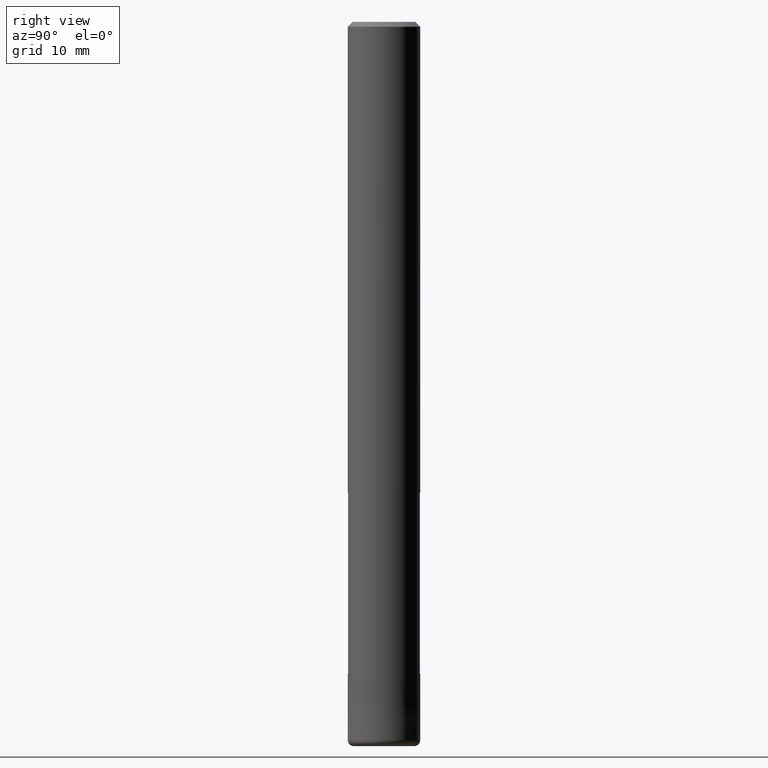
[diagram: clean part render]
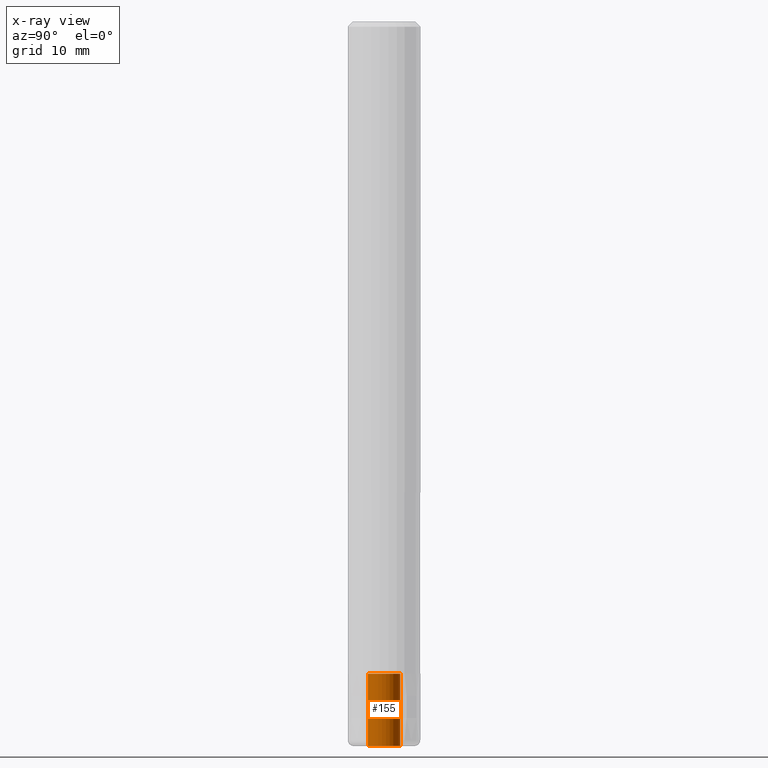
[diagram: x-ray — body ghosted, one internal face saturated and labeled with its STEP entity id]
A machine part, right view, then the same camera in x-ray: the body is ghosted and one INTERNAL B-rep face — a face not visible from any outside direction — is saturated and labeled: STEP entity #155.
In plain terms, the highlighted cylindrical surface (edge-blend (fillet) strip) has radius 1.35 mm, axis along (-0, -0, 1).
Its self-contained STEP definition (entity closure, byte-faithful):
#129=VERTEX_POINT('',#319);
#137=VERTEX_POINT('',#327);
#155=ADVANCED_FACE('',(#348),#349,.F.);
#161=VERTEX_POINT('',#355);
#183=EDGE_CURVE('',#129,#161,#384,.T.);
#187=VERTEX_POINT('',#388);
#207=EDGE_CURVE('',#187,#137,#409,.T.);
#251=EDGE_CURVE('',#137,#161,#458,.T.);
#269=EDGE_CURVE('',#129,#187,#477,.T.);
#319=CARTESIAN_POINT('',(0.0,1.35,-54.0));
#327=CARTESIAN_POINT('',(1.65321857766021E-016,-1.35,-60.0));
#348=FACE_OUTER_BOUND('',#560,.T.);
#349=CYLINDRICAL_SURFACE('',#561,1.35);
#355=CARTESIAN_POINT('',(1.65321857766021E-016,-1.35,-54.0));
#384=CIRCLE('',#604,1.35);
#388=CARTESIAN_POINT('',(0.0,1.35,-60.0));
#409=CIRCLE('',#633,1.35);
#458=LINE('',#696,#697);
#477=LINE('',#724,#725);
#560=EDGE_LOOP('',(#798,#799,#800,#801));
#561=AXIS2_PLACEMENT_3D('',#802,#803,#804);
#604=AXIS2_PLACEMENT_3D('',#862,#863,#864);
#633=AXIS2_PLACEMENT_3D('',#886,#887,#888);
#696=CARTESIAN_POINT('',(1.65321857766021E-016,-1.35,-57.0));
#697=VECTOR('',#954,1.0);
#724=CARTESIAN_POINT('',(-1.65321857766021E-016,1.35,-57.0));
#725=VECTOR('',#974,1.0);
#798=ORIENTED_EDGE('',*,*,#269,.T.);
#799=ORIENTED_EDGE('',*,*,#207,.T.);
#800=ORIENTED_EDGE('',*,*,#251,.T.);
#801=ORIENTED_EDGE('',*,*,#183,.F.);
#802=CARTESIAN_POINT('',(0.0,0.0,-57.0));
#803=DIRECTION('',(-0.0,-0.0,1.0));
#804=DIRECTION('',(0.0,1.0,0.0));
#862=CARTESIAN_POINT('',(0.0,0.0,-54.0));
#863=DIRECTION('',(0.0,0.0,-1.0));
#864=DIRECTION('',(0.0,1.0,0.0));
#886=CARTESIAN_POINT('',(0.0,0.0,-60.0));
#887=DIRECTION('',(0.0,0.0,-1.0));
#888=DIRECTION('',(0.0,1.0,0.0));
#954=DIRECTION('',(0.0,-0.0,1.0));
#974=DIRECTION('',(0.0,-0.0,-1.0));